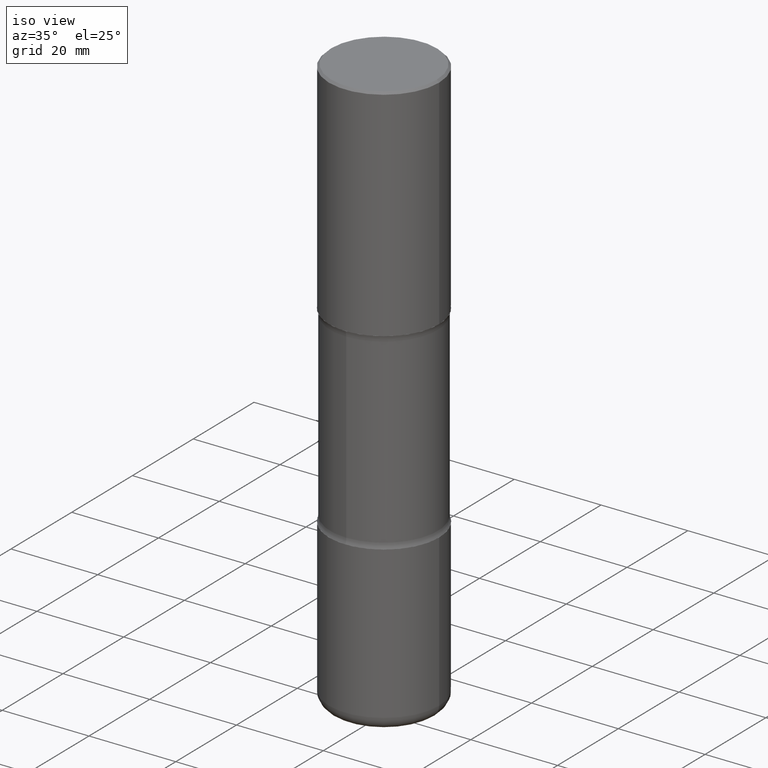
[diagram: clean part render]
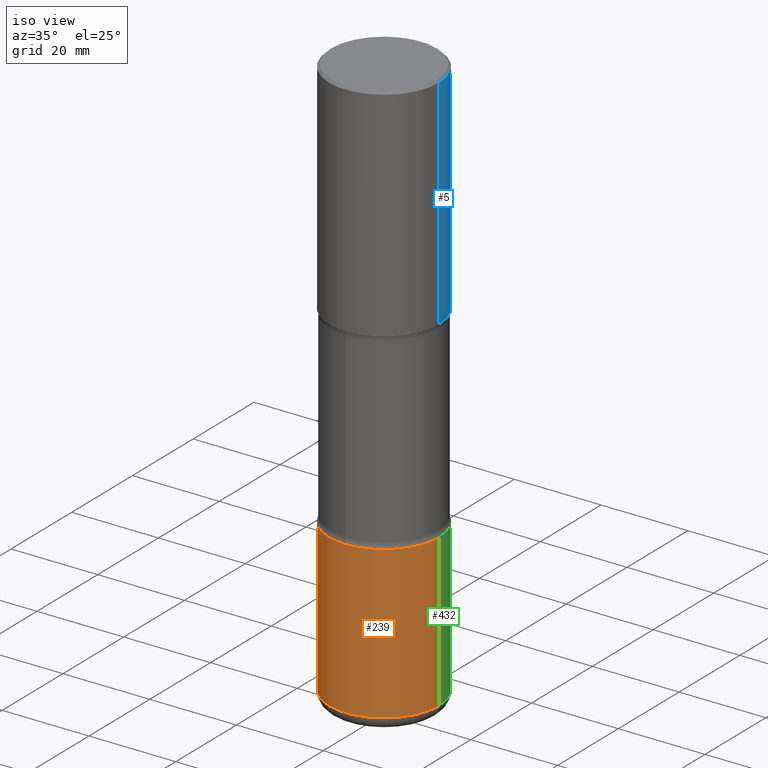
[diagram: same view with three faces highlighted in distinct colors, each labeled with its STEP entity id]
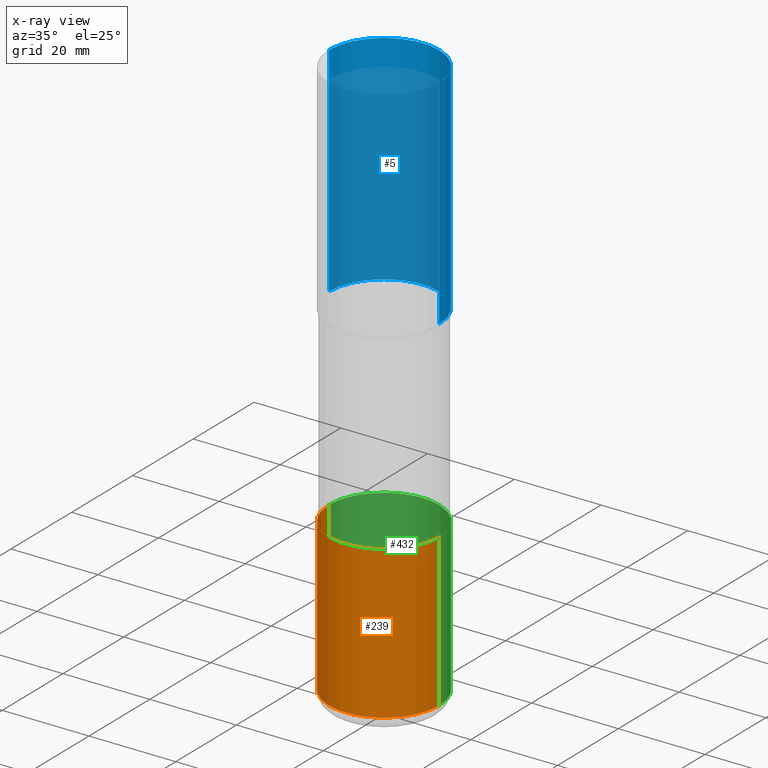
[diagram: x-ray of the same camera — body ghosted, the three highlighted faces saturated]
A machine part, iso view with three faces highlighted in distinct colors.
The next image is the same camera in x-ray (body ghosted, the three faces saturated) — at least one of them is partly hidden behind the body in this view.
Their STEP definitions:

[orange] entity #239 — the highlighted cylindrical surface (partial cylindrical patch) has radius 12.7 mm, axis along (-0, 0, 1).
#1 = DIRECTION ( 'NONE',  ( -2.445468806185136597E-29, 3.491481338843145583E-15, 1.000000000000000000 ) ) ;
#2 = VECTOR ( 'NONE', #487, 39.37007874015748143 ) ;
#34 = DIRECTION ( 'NONE',  ( 1.000000000000000000, -6.982962677686266711E-15, 4.876176775795935232E-29 ) ) ;
#42 = DIRECTION ( 'NONE',  ( -2.445468806185136597E-29, 3.491481338843145583E-15, 1.000000000000000000 ) ) ;
#58 = ORIENTED_EDGE ( 'NONE', *, *, #129, .F. ) ;
#82 = LINE ( 'NONE', #243, #414 ) ;
#85 = CIRCLE ( 'NONE', #290, 0.5000000000000004441 ) ;
#104 = VERTEX_POINT ( 'NONE', #176 ) ;
#129 = EDGE_CURVE ( 'NONE', #104, #276, #142, .T. ) ;
#142 = LINE ( 'NONE', #317, #2 ) ;
#157 = AXIS2_PLACEMENT_3D ( 'NONE', #226, #406, #188 ) ;
#158 = ORIENTED_EDGE ( 'NONE', *, *, #345, .T. ) ;
#176 = CARTESIAN_POINT ( 'NONE',  ( -0.5000000000000006661, -1.435858558946483566E-14, -5.130000000000001670 ) ) ;
#188 = DIRECTION ( 'NONE',  ( 1.000000000000000000, -6.982962677686268288E-15, 0.000000000000000000 ) ) ;
#199 = DIRECTION ( 'NONE',  ( -2.445468806185136877E-29, 3.491481338843145188E-15, 1.000000000000000000 ) ) ;
#225 = EDGE_CURVE ( 'NONE', #537, #434, #82, .T. ) ;
#226 = CARTESIAN_POINT ( 'NONE',  ( 9.170508023194261117E-29, -1.309305502066179584E-14, -3.749999999999999556 ) ) ;
#239 = ADVANCED_FACE ( 'NONE', ( #343 ), #383, .T. ) ;
#243 = CARTESIAN_POINT ( 'NONE',  ( 0.5000000000000004441, -3.491481338843136511E-15, 2.438088387897969858E-29 ) ) ;
#265 = DIRECTION ( 'NONE',  ( 1.000000000000000000, -6.982962677686264344E-15, 0.000000000000000000 ) ) ;
#269 = CIRCLE ( 'NONE', #157, 0.5000000000000004441 ) ;
#272 = ORIENTED_EDGE ( 'NONE', *, *, #225, .T. ) ;
#276 = VERTEX_POINT ( 'NONE', #428 ) ;
#288 = CARTESIAN_POINT ( 'NONE',  ( 0.5000000000000006661, -2.140278060710847941E-14, -5.130000000000001670 ) ) ;
#290 = AXIS2_PLACEMENT_3D ( 'NONE', #308, #1, #265 ) ;
#308 = CARTESIAN_POINT ( 'NONE',  ( 1.254525497572975307E-28, -1.791129926826534290E-14, -5.130000000000001670 ) ) ;
#317 = CARTESIAN_POINT ( 'NONE',  ( -0.5000000000000004441, 3.552713678800504085E-15, -2.459467545127455133E-29 ) ) ;
#343 = FACE_OUTER_BOUND ( 'NONE', #508, .T. ) ;
#345 = EDGE_CURVE ( 'NONE', #104, #537, #85, .T. ) ;
#383 = CYLINDRICAL_SURFACE ( 'NONE', #513, 0.5000000000000004441 ) ;
#406 = DIRECTION ( 'NONE',  ( -2.445468806185136597E-29, 3.491481338843145583E-15, 1.000000000000000000 ) ) ;
#414 = VECTOR ( 'NONE', #199, 39.37007874015748143 ) ;
#418 = ORIENTED_EDGE ( 'NONE', *, *, #482, .F. ) ;
#425 = CARTESIAN_POINT ( 'NONE',  ( 0.000000000000000000, 0.000000000000000000, 0.000000000000000000 ) ) ;
#428 = CARTESIAN_POINT ( 'NONE',  ( -0.5000000000000004441, -1.194946346566306450E-14, -3.749999999999999556 ) ) ;
#434 = VERTEX_POINT ( 'NONE', #474 ) ;
#474 = CARTESIAN_POINT ( 'NONE',  ( 0.5000000000000004441, -1.658453635950493392E-14, -3.749999999999999556 ) ) ;
#482 = EDGE_CURVE ( 'NONE', #276, #434, #269, .T. ) ;
#487 = DIRECTION ( 'NONE',  ( -2.445468806185136877E-29, 3.491481338843145188E-15, 1.000000000000000000 ) ) ;
#508 = EDGE_LOOP ( 'NONE', ( #58, #158, #272, #418 ) ) ;
#513 = AXIS2_PLACEMENT_3D ( 'NONE', #425, #42, #34 ) ;
#537 = VERTEX_POINT ( 'NONE', #288 ) ;

[blue] entity #5 — the highlighted cylindrical surface (partial cylindrical patch) has radius 12.7 mm, axis along (-0, 0, 1).
#5 = ADVANCED_FACE ( 'NONE', ( #235 ), #245, .T. ) ;
#6 = LINE ( 'NONE', #478, #280 ) ;
#15 = EDGE_CURVE ( 'NONE', #548, #131, #267, .T. ) ;
#20 = CARTESIAN_POINT ( 'NONE',  ( 0.5000000000000002220, -3.500078625662630657E-15, -0.02000000000000010103 ) ) ;
#55 = LINE ( 'NONE', #130, #388 ) ;
#66 = EDGE_LOOP ( 'NONE', ( #401, #543, #516, #79 ) ) ;
#71 = EDGE_CURVE ( 'NONE', #438, #182, #154, .T. ) ;
#79 = ORIENTED_EDGE ( 'NONE', *, *, #396, .F. ) ;
#93 = AXIS2_PLACEMENT_3D ( 'NONE', #477, #266, #271 ) ;
#130 = CARTESIAN_POINT ( 'NONE',  ( 0.5000000000000003331, -3.491481338843135722E-15, 2.438088387897969578E-29 ) ) ;
#131 = VERTEX_POINT ( 'NONE', #451 ) ;
#154 = CIRCLE ( 'NONE', #93, 0.5000000000000002220 ) ;
#167 = CARTESIAN_POINT ( 'NONE',  ( 0.000000000000000000, 0.000000000000000000, 0.000000000000000000 ) ) ;
#174 = DIRECTION ( 'NONE',  ( -2.445468806185136877E-29, 3.491481338843145188E-15, 1.000000000000000000 ) ) ;
#177 = AXIS2_PLACEMENT_3D ( 'NONE', #470, #339, #431 ) ;
#182 = VERTEX_POINT ( 'NONE', #463 ) ;
#212 = DIRECTION ( 'NONE',  ( -2.445468806185136877E-29, 3.491481338843145188E-15, 1.000000000000000000 ) ) ;
#235 = FACE_OUTER_BOUND ( 'NONE', #66, .T. ) ;
#245 = CYLINDRICAL_SURFACE ( 'NONE', #491, 0.5000000000000003331 ) ;
#266 = DIRECTION ( 'NONE',  ( -2.445468806185136597E-29, 3.491481338843145583E-15, 1.000000000000000000 ) ) ;
#267 = CIRCLE ( 'NONE', #177, 0.5000000000000004441 ) ;
#271 = DIRECTION ( 'NONE',  ( 1.000000000000000000, -6.982962677686267499E-15, 0.000000000000000000 ) ) ;
#280 = VECTOR ( 'NONE', #212, 39.37007874015748143 ) ;
#339 = DIRECTION ( 'NONE',  ( -2.445468806185136597E-29, 3.491481338843145583E-15, 1.000000000000000000 ) ) ;
#374 = EDGE_CURVE ( 'NONE', #131, #182, #6, .T. ) ;
#388 = VECTOR ( 'NONE', #174, 39.37007874015748143 ) ;
#390 = CARTESIAN_POINT ( 'NONE',  ( 0.5000000000000004441, -1.047444401652943004E-14, -2.000000000000000444 ) ) ;
#396 = EDGE_CURVE ( 'NONE', #548, #438, #55, .T. ) ;
#401 = ORIENTED_EDGE ( 'NONE', *, *, #15, .T. ) ;
#427 = DIRECTION ( 'NONE',  ( 1.000000000000000000, -6.982962677686266711E-15, 4.876176775795935793E-29 ) ) ;
#431 = DIRECTION ( 'NONE',  ( 1.000000000000000000, -6.982962677686266711E-15, 0.000000000000000000 ) ) ;
#438 = VERTEX_POINT ( 'NONE', #20 ) ;
#451 = CARTESIAN_POINT ( 'NONE',  ( -0.5000000000000004441, 2.631752656892707803E-17, -2.000000000000000444 ) ) ;
#463 = CARTESIAN_POINT ( 'NONE',  ( -0.5000000000000002220, 3.421651712066272029E-15, -0.02000000000000010103 ) ) ;
#470 = CARTESIAN_POINT ( 'NONE',  ( 4.890937612370274875E-29, -6.982962677686292743E-15, -2.000000000000000444 ) ) ;
#477 = CARTESIAN_POINT ( 'NONE',  ( 4.890937612370298557E-31, -6.982962677686327354E-17, -0.02000000000000010103 ) ) ;
#478 = CARTESIAN_POINT ( 'NONE',  ( -0.5000000000000003331, 3.552713678800503296E-15, -2.459467545127454572E-29 ) ) ;
#491 = AXIS2_PLACEMENT_3D ( 'NONE', #167, #551, #427 ) ;
#516 = ORIENTED_EDGE ( 'NONE', *, *, #71, .F. ) ;
#543 = ORIENTED_EDGE ( 'NONE', *, *, #374, .T. ) ;
#548 = VERTEX_POINT ( 'NONE', #390 ) ;
#551 = DIRECTION ( 'NONE',  ( -2.445468806185136597E-29, 3.491481338843145583E-15, 1.000000000000000000 ) ) ;

[green] entity #432 — the highlighted cylindrical surface (partial cylindrical patch) has radius 12.7 mm, axis along (-0, 0, 1).
#2 = VECTOR ( 'NONE', #487, 39.37007874015748143 ) ;
#40 = EDGE_CURVE ( 'NONE', #434, #276, #319, .T. ) ;
#49 = AXIS2_PLACEMENT_3D ( 'NONE', #241, #198, #555 ) ;
#64 = ORIENTED_EDGE ( 'NONE', *, *, #225, .F. ) ;
#82 = LINE ( 'NONE', #243, #414 ) ;
#89 = EDGE_LOOP ( 'NONE', ( #144, #94, #391, #64 ) ) ;
#94 = ORIENTED_EDGE ( 'NONE', *, *, #129, .T. ) ;
#104 = VERTEX_POINT ( 'NONE', #176 ) ;
#129 = EDGE_CURVE ( 'NONE', #104, #276, #142, .T. ) ;
#140 = FACE_OUTER_BOUND ( 'NONE', #89, .T. ) ;
#142 = LINE ( 'NONE', #317, #2 ) ;
#144 = ORIENTED_EDGE ( 'NONE', *, *, #209, .T. ) ;
#176 = CARTESIAN_POINT ( 'NONE',  ( -0.5000000000000006661, -1.435858558946483566E-14, -5.130000000000001670 ) ) ;
#197 = AXIS2_PLACEMENT_3D ( 'NONE', #259, #528, #315 ) ;
#198 = DIRECTION ( 'NONE',  ( -2.445468806185136597E-29, 3.491481338843145583E-15, 1.000000000000000000 ) ) ;
#199 = DIRECTION ( 'NONE',  ( -2.445468806185136877E-29, 3.491481338843145188E-15, 1.000000000000000000 ) ) ;
#206 = AXIS2_PLACEMENT_3D ( 'NONE', #517, #386, #337 ) ;
#209 = EDGE_CURVE ( 'NONE', #537, #104, #429, .T. ) ;
#225 = EDGE_CURVE ( 'NONE', #537, #434, #82, .T. ) ;
#241 = CARTESIAN_POINT ( 'NONE',  ( 9.170508023194261117E-29, -1.309305502066179584E-14, -3.749999999999999556 ) ) ;
#243 = CARTESIAN_POINT ( 'NONE',  ( 0.5000000000000004441, -3.491481338843136511E-15, 2.438088387897969858E-29 ) ) ;
#259 = CARTESIAN_POINT ( 'NONE',  ( 0.000000000000000000, 0.000000000000000000, 0.000000000000000000 ) ) ;
#276 = VERTEX_POINT ( 'NONE', #428 ) ;
#288 = CARTESIAN_POINT ( 'NONE',  ( 0.5000000000000006661, -2.140278060710847941E-14, -5.130000000000001670 ) ) ;
#315 = DIRECTION ( 'NONE',  ( 1.000000000000000000, -6.982962677686266711E-15, 4.876176775795935232E-29 ) ) ;
#317 = CARTESIAN_POINT ( 'NONE',  ( -0.5000000000000004441, 3.552713678800504085E-15, -2.459467545127455133E-29 ) ) ;
#319 = CIRCLE ( 'NONE', #49, 0.5000000000000004441 ) ;
#337 = DIRECTION ( 'NONE',  ( 1.000000000000000000, -6.982962677686264344E-15, 0.000000000000000000 ) ) ;
#386 = DIRECTION ( 'NONE',  ( -2.445468806185136597E-29, 3.491481338843145583E-15, 1.000000000000000000 ) ) ;
#391 = ORIENTED_EDGE ( 'NONE', *, *, #40, .F. ) ;
#414 = VECTOR ( 'NONE', #199, 39.37007874015748143 ) ;
#428 = CARTESIAN_POINT ( 'NONE',  ( -0.5000000000000004441, -1.194946346566306450E-14, -3.749999999999999556 ) ) ;
#429 = CIRCLE ( 'NONE', #206, 0.5000000000000004441 ) ;
#432 = ADVANCED_FACE ( 'NONE', ( #140 ), #524, .T. ) ;
#434 = VERTEX_POINT ( 'NONE', #474 ) ;
#474 = CARTESIAN_POINT ( 'NONE',  ( 0.5000000000000004441, -1.658453635950493392E-14, -3.749999999999999556 ) ) ;
#487 = DIRECTION ( 'NONE',  ( -2.445468806185136877E-29, 3.491481338843145188E-15, 1.000000000000000000 ) ) ;
#517 = CARTESIAN_POINT ( 'NONE',  ( 1.254525497572975307E-28, -1.791129926826534290E-14, -5.130000000000001670 ) ) ;
#524 = CYLINDRICAL_SURFACE ( 'NONE', #197, 0.5000000000000004441 ) ;
#528 = DIRECTION ( 'NONE',  ( -2.445468806185136597E-29, 3.491481338843145583E-15, 1.000000000000000000 ) ) ;
#537 = VERTEX_POINT ( 'NONE', #288 ) ;
#555 = DIRECTION ( 'NONE',  ( 1.000000000000000000, -6.982962677686268288E-15, 0.000000000000000000 ) ) ;